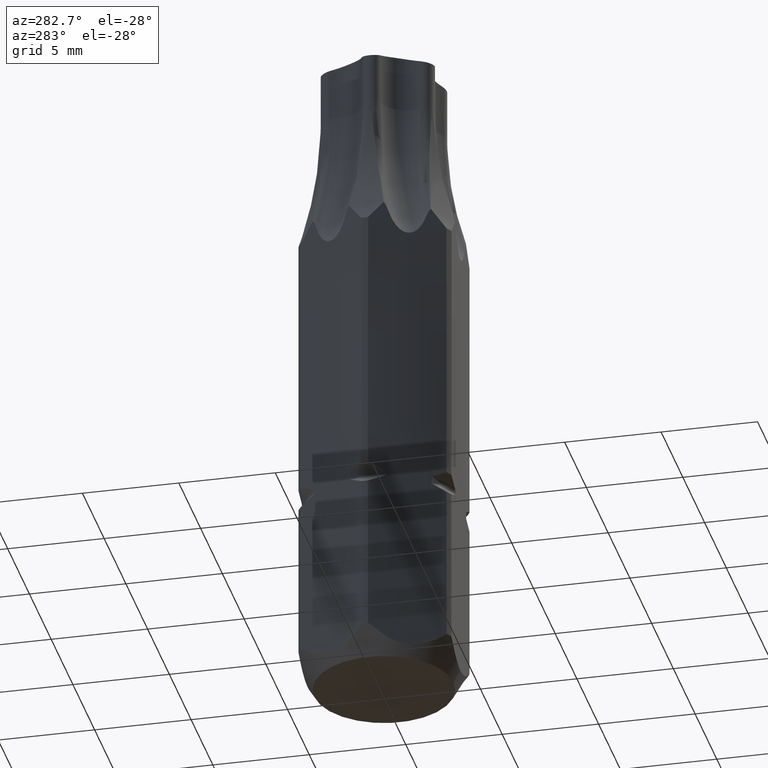
[diagram: clean part render]
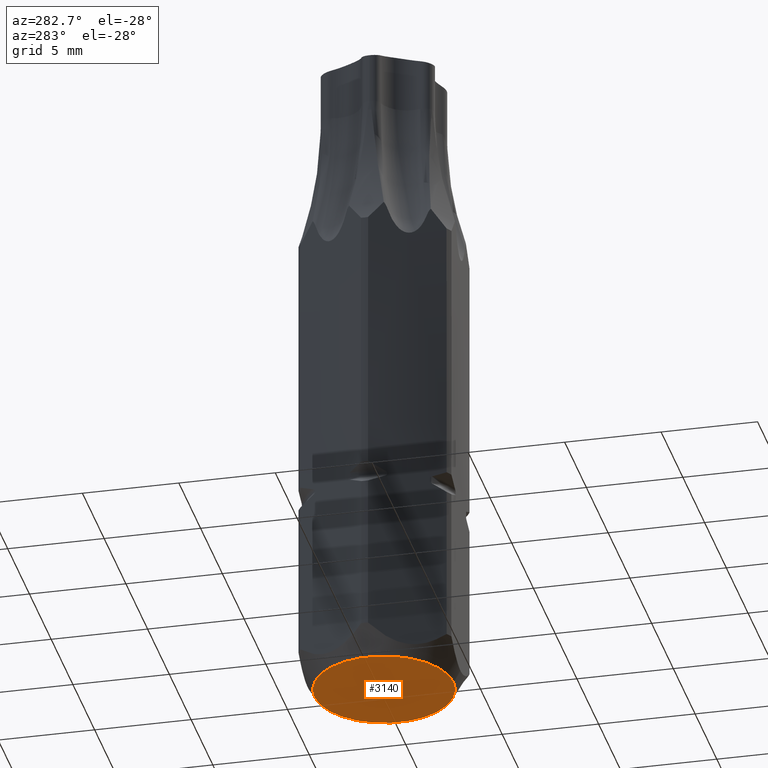
[diagram: same view with one face highlighted and labeled with its STEP entity id]
A machine part, auxiliary view. The second image highlights one B-rep face of the part: STEP entity #3140.
In plain terms, the highlighted planar face has unit normal (0, 0, 1).
Its self-contained STEP definition (entity closure, byte-faithful):
#45=CARTESIAN_POINT('',(0.E0,0.E0,0.E0));
#46=DIRECTION('',(0.E0,0.E0,1.E0));
#47=DIRECTION('',(0.E0,1.E0,0.E0));
#48=AXIS2_PLACEMENT_3D('',#45,#46,#47);
#54=CARTESIAN_POINT('',(0.E0,0.E0,0.E0));
#55=DIRECTION('',(0.E0,0.E0,1.E0));
#56=DIRECTION('',(0.E0,-1.E0,0.E0));
#57=AXIS2_PLACEMENT_3D('',#54,#55,#56);
#2955=CARTESIAN_POINT('',(0.E0,3.613974596216E0,0.E0));
#2956=CARTESIAN_POINT('',(0.E0,-3.613974596216E0,0.E0));
#2957=VERTEX_POINT('',#2955);
#2958=VERTEX_POINT('',#2956);
#3129=CARTESIAN_POINT('',(0.E0,0.E0,0.E0));
#3130=DIRECTION('',(0.E0,0.E0,1.E0));
#3131=DIRECTION('',(1.E0,0.E0,0.E0));
#3132=AXIS2_PLACEMENT_3D('',#3129,#3130,#3131);
#3133=PLANE('',#3132);
#3135=ORIENTED_EDGE('',*,*,#3134,.T.);
#3137=ORIENTED_EDGE('',*,*,#3136,.T.);
#3138=EDGE_LOOP('',(#3135,#3137));
#3139=FACE_OUTER_BOUND('',#3138,.F.);
#3140=ADVANCED_FACE('',(#3139),#3133,.F.);
#49=CIRCLE('',#48,3.613974596216E0);
#58=CIRCLE('',#57,3.613974596216E0);
#3134=EDGE_CURVE('',#2957,#2958,#49,.T.);
#3136=EDGE_CURVE('',#2958,#2957,#58,.T.);